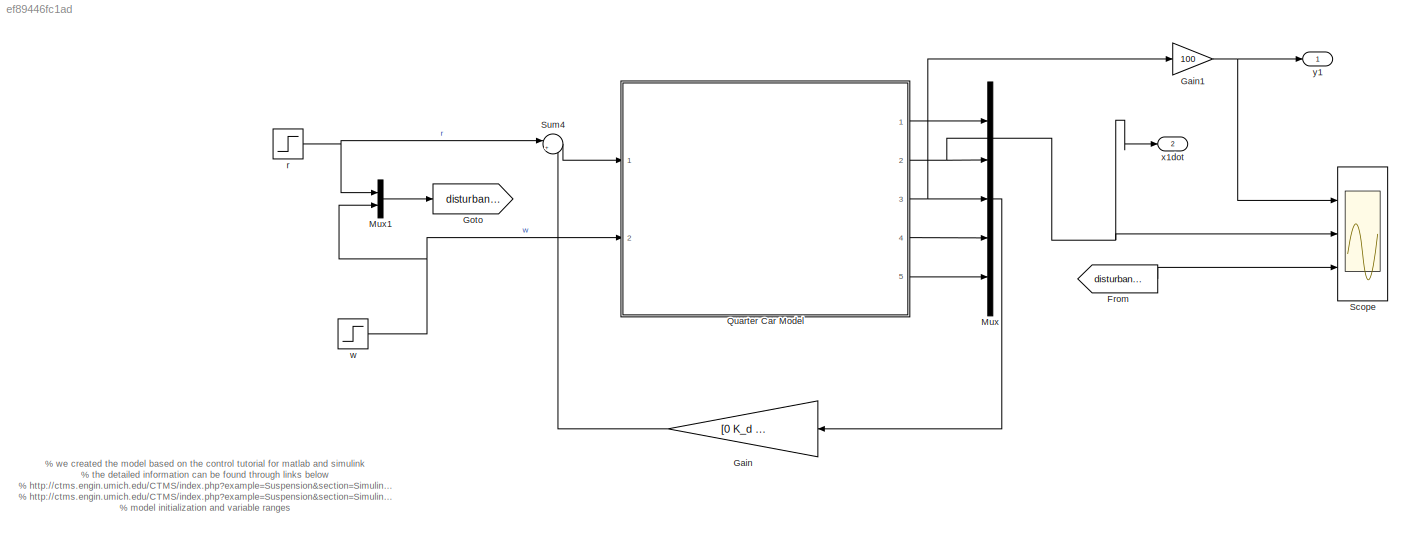
MODEL slx_ef89446fc1ad
KIND model
CONFIG AbsTol = auto
CONFIG FixedStep = auto
CONFIG MaxStep = auto
CONFIG MinStep = auto
CONFIG RelTol = 1e-3
CONFIG SampleTimeConstraint = Unconstrained
CONFIG Solver = ode15s
CONFIG SolverMode = Auto
CONFIG SolverName = ode15s
CONFIG StartTime = 0.0
CONFIG StopTime = 3
WORKSPACE source: MAT-file member
WORKSPACE K_d = 230717.117936
BLOCK [From] From
  GotoTag = disturbance
BLOCK [Gain] Gain
  Gain = [0 K_d K_p 0 K_i]
  Multiplication = Matrix(K*u)
  OutDataTypeStr = Inherit: Inherit via internal rule
  ParamDataTypeStr = Inherit: Inherit via internal rule
  SaturateOnIntegerOverflow = off
BLOCK [Gain] Gain1
  Gain = 100
  OutDataTypeStr = Inherit: Inherit via internal rule
  ParamDataTypeStr = Inherit: Inherit via internal rule
  SaturateOnIntegerOverflow = off
BLOCK [Goto] Goto
  GotoTag = disturbance
BLOCK [Mux] Mux
  DisplayOption = bar
  Inputs = 5
  Ports = [5, 1]
BLOCK [Mux] Mux1
  DisplayOption = bar
  Inputs = 2
  Ports = [2, 1]
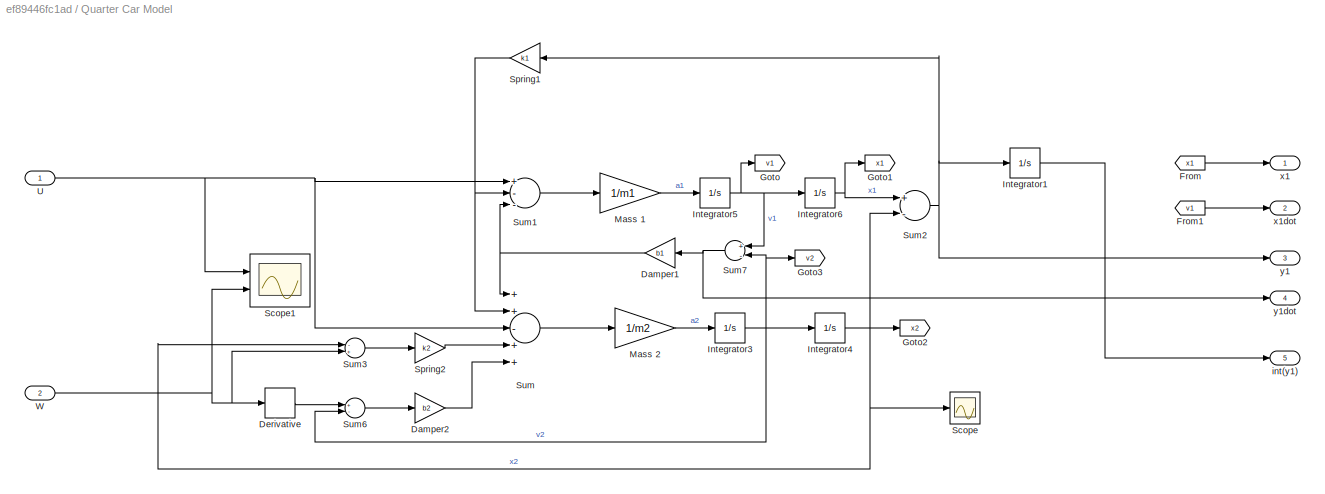
BLOCK [SubSystem] Quarter Car Model
  Ports = [2, 5]
  RequestExecContextInheritance = off
  Variant = off
BLOCK [Gain] Quarter Car Model/Damper1
  Gain = b1
  OutDataTypeStr = Inherit: Inherit via internal rule
  ParamDataTypeStr = Inherit: Inherit via internal rule
  SaturateOnIntegerOverflow = off
BLOCK [Gain] Quarter Car Model/Damper2
  Gain = b2
  OutDataTypeStr = Inherit: Inherit via internal rule
  ParamDataTypeStr = Inherit: Inherit via internal rule
  SaturateOnIntegerOverflow = off
BLOCK [Derivative] Quarter Car Model/Derivative
BLOCK [From] Quarter Car Model/From
  GotoTag = x1
BLOCK [From] Quarter Car Model/From1
  GotoTag = v1
BLOCK [Goto] Quarter Car Model/Goto
  GotoTag = v1
BLOCK [Goto] Quarter Car Model/Goto1
  GotoTag = x1
BLOCK [Goto] Quarter Car Model/Goto2
  GotoTag = x2
BLOCK [Goto] Quarter Car Model/Goto3
  GotoTag = v2
BLOCK [Integrator] Quarter Car Model/Integrator1
  Ports = [1, 1]
BLOCK [Integrator] Quarter Car Model/Integrator3
  Ports = [1, 1]
BLOCK [Integrator] Quarter Car Model/Integrator4
  Ports = [1, 1]
BLOCK [Integrator] Quarter Car Model/Integrator5
  Ports = [1, 1]
BLOCK [Integrator] Quarter Car Model/Integrator6
  Ports = [1, 1]
BLOCK [Gain] Quarter Car Model/Mass 1
  Gain = 1/m1
  OutDataTypeStr = Inherit: Inherit via internal rule
  ParamDataTypeStr = Inherit: Inherit via internal rule
  SaturateOnIntegerOverflow = off
BLOCK [Gain] Quarter Car Model/Mass 2
  Gain = 1/m2
  OutDataTypeStr = Inherit: Inherit via internal rule
  ParamDataTypeStr = Inherit: Inherit via internal rule
  SaturateOnIntegerOverflow = off
BLOCK [Scope] Quarter Car Model/Scope
  Ports = [1]
  ScopeSpecificationString = C++SS(StrPVP('Location','[188, 390, 512, 629]'),StrPVP('Open','off'),MxPVP('AxesTitles',24,'struct(''axes1'',''%<SignalLabel>'')'),MxPVP('ScopeGraphics',28,'struct(''FigureColor'',''[0.5 0.5 0.5]'',''AxesColor'',''[0 0 0]'',''AxesTickColor'',''[1 1 1]'',''LineColors'',''[1 1 0;1 0 1;0 1 1;1 0 0;0 1 0;0 0 1]'',''LineStyles'',''-|-|-|-|-|-'',''LineWidths'',''[0.5 0.5 0.5 0.5 0.5 0.5]'',''MarkerStyle...<+243ch>
BLOCK [Scope] Quarter Car Model/Scope1
  NumInputPorts = 2
  Ports = [2]
  ScopeSpecificationString = C++SS(StrPVP('Location','[1458, 456, 1782, 695]'),StrPVP('Open','off'),MxPVP('AxesTitles',24,'struct(''axes1'',''%<SignalLabel>'',''axes2'',''%<SignalLabel>'')'),MxPVP('ScopeGraphics',28,'struct(''FigureColor'',''[0.5 0.5 0.5]'',''AxesColor'',''[0 0 0]'',''AxesTickColor'',''[1 1 1]'',''LineColors'',''[1 1 0;1 0 1;0 1 1;1 0 0;0 1 0;0 0 1]'',''LineStyles'',''-|-|-|-|-|-'',''LineWidths'',''[0.5 0.5 0...<+319ch>
BLOCK [Gain] Quarter Car Model/Spring1
  Gain = k1
  OutDataTypeStr = Inherit: Inherit via internal rule
  ParamDataTypeStr = Inherit: Inherit via internal rule
  SaturateOnIntegerOverflow = off
BLOCK [Gain] Quarter Car Model/Spring2
  Gain = k2
  OutDataTypeStr = Inherit: Inherit via internal rule
  ParamDataTypeStr = Inherit: Inherit via internal rule
  SaturateOnIntegerOverflow = off
BLOCK [Sum] Quarter Car Model/Sum
  InputSameDT = off
  Inputs = ++-++
  OutDataTypeStr = Inherit: Inherit via internal rule
  Ports = [5, 1]
  SaturateOnIntegerOverflow = off
BLOCK [Sum] Quarter Car Model/Sum1
  InputSameDT = off
  Inputs = +--
  OutDataTypeStr = Inherit: Inherit via internal rule
  Ports = [3, 1]
  SaturateOnIntegerOverflow = off
BLOCK [Sum] Quarter Car Model/Sum2
  InputSameDT = off
  Inputs = +-
  OutDataTypeStr = Inherit: Inherit via internal rule
  Ports = [2, 1]
  SaturateOnIntegerOverflow = off
BLOCK [Sum] Quarter Car Model/Sum3
  InputSameDT = off
  Inputs = -+
  OutDataTypeStr = Inherit: Inherit via internal rule
  Ports = [2, 1]
  SaturateOnIntegerOverflow = off
BLOCK [Sum] Quarter Car Model/Sum6
  InputSameDT = off
  Inputs = +-
  OutDataTypeStr = Inherit: Inherit via internal rule
  Ports = [2, 1]
  SaturateOnIntegerOverflow = off
BLOCK [Sum] Quarter Car Model/Sum7
  InputSameDT = off
  Inputs = +-
  OutDataTypeStr = Inherit: Inherit via internal rule
  Ports = [2, 1]
  SaturateOnIntegerOverflow = off
BLOCK [Inport] Quarter Car Model/U
  IconDisplay = Port number
BLOCK [Inport] Quarter Car Model/W
  IconDisplay = Port number
  Port = 2
BLOCK [Outport] Quarter Car Model/int(y1)
  IconDisplay = Port number
  Port = 5
BLOCK [Outport] Quarter Car Model/x1
  IconDisplay = Port number
BLOCK [Outport] Quarter Car Model/x1dot
  IconDisplay = Port number
  Port = 2
BLOCK [Outport] Quarter Car Model/y1
  IconDisplay = Port number
  Port = 3
BLOCK [Outport] Quarter Car Model/y1dot
  IconDisplay = Port number
  Port = 4
BLOCK [Scope] Scope
  NumInputPorts = 3
  Ports = [3]
  ScopeSpecificationString = Simulink.scopes.TimeScopeBlockCfg('CurrentConfiguration', extmgr.ConfigurationSet(extmgr.Configuration('Core','General UI',true),extmgr.Configuration('Core','Source UI',true),extmgr.Configuration('Sources','WiredSimulink',true,'DataLoggingSaveFormat','StructureWithTime','DataLoggingDecimation','1','DataLoggingDecimateData',true),extmgr.Configuration('Visuals','Time Domain',true,'SerializedDisplays...<+3065ch>
BLOCK [Sum] Sum4
  IconShape = round
  InputSameDT = off
  Inputs = |+-
  OutDataTypeStr = Inherit: Inherit via internal rule
  Ports = [2, 1]
  SaturateOnIntegerOverflow = off
BLOCK [Step] r
  After = 0
  SampleTime = 0
BLOCK [Step] w
  After = road_step
  SampleTime = 0
  Time = 0
BLOCK [Outport] x1dot
  IconDisplay = Port number
  Port = 2
BLOCK [Outport] y1
  IconDisplay = Port number
ANNOTATION (root): % we created the model based on the control tutorial for matlab and simulink % the detailed information can be found through links below % http://ctms.engin.umich.edu/CTMS/index.php?example=Suspension&section=SimulinkModeling % http://ctms.engin.umich.edu/CTMS/index.php?example=Suspension&section=SimulinkControl % model initialization and variable ranges m1 = 2500; m2 = 320; k1 = 80000; k2 = 50000...<+105ch>
LINE From:1 -> Scope:3
NET Gain1:1 -> Scope:1, y1:1
LINE Gain:1 -> Sum4:2
LINE Mux1:1 -> Goto:1
LINE Mux:1 -> Gain:1
NET Quarter Car Model/Damper1:1 -> Quarter Car Model/Sum1:3, Quarter Car Model/Sum:1
LINE Quarter Car Model/Damper2:1 -> Quarter Car Model/Sum:5
LINE Quarter Car Model/Derivative:1 -> Quarter Car Model/Sum6:1
LINE Quarter Car Model/From1:1 -> Quarter Car Model/x1dot:1
LINE Quarter Car Model/From:1 -> Quarter Car Model/x1:1
LINE Quarter Car Model/Integrator1:1 -> Quarter Car Model/int(y1):1
NET Quarter Car Model/Integrator3:1 -> Quarter Car Model/Goto3:1, Quarter Car Model/Integrator4:1, Quarter Car Model/Sum6:2, Quarter Car Model/Sum7:2
NET Quarter Car Model/Integrator4:1 -> Quarter Car Model/Goto2:1, Quarter Car Model/Scope:1, Quarter Car Model/Sum2:2, Quarter Car Model/Sum3:1
NET Quarter Car Model/Integrator5:1 -> Quarter Car Model/Goto:1, Quarter Car Model/Integrator6:1, Quarter Car Model/Sum7:1
NET Quarter Car Model/Integrator6:1 -> Quarter Car Model/Goto1:1, Quarter Car Model/Sum2:1
LINE Quarter Car Model/Mass 1:1 -> Quarter Car Model/Integrator5:1
LINE Quarter Car Model/Mass 2:1 -> Quarter Car Model/Integrator3:1
NET Quarter Car Model/Spring1:1 -> Quarter Car Model/Sum1:2, Quarter Car Model/Sum:2
LINE Quarter Car Model/Spring2:1 -> Quarter Car Model/Sum:4
LINE Quarter Car Model/Sum1:1 -> Quarter Car Model/Mass 1:1
NET Quarter Car Model/Sum2:1 -> Quarter Car Model/Integrator1:1, Quarter Car Model/Spring1:1, Quarter Car Model/y1:1
LINE Quarter Car Model/Sum3:1 -> Quarter Car Model/Spring2:1
LINE Quarter Car Model/Sum6:1 -> Quarter Car Model/Damper2:1
NET Quarter Car Model/Sum7:1 -> Quarter Car Model/Damper1:1, Quarter Car Model/y1dot:1
LINE Quarter Car Model/Sum:1 -> Quarter Car Model/Mass 2:1
NET Quarter Car Model/U:1 -> Quarter Car Model/Scope1:1, Quarter Car Model/Sum1:1, Quarter Car Model/Sum:3
NET Quarter Car Model/W:1 -> Quarter Car Model/Derivative:1, Quarter Car Model/Scope1:2, Quarter Car Model/Sum3:2
LINE Quarter Car Model:1 -> Mux:1
NET Quarter Car Model:2 -> Mux:2, Scope:2, x1dot:1
NET Quarter Car Model:3 -> Gain1:1, Mux:3
LINE Quarter Car Model:4 -> Mux:4
LINE Quarter Car Model:5 -> Mux:5
LINE Sum4:1 -> Quarter Car Model:1
NET r:1 -> Mux1:1, Sum4:1
NET w:1 -> Mux1:2, Quarter Car Model:2
note: NET lines group one-source signal fan-out (src -> all destinations, sorted); 1:1 wires keep LINE
